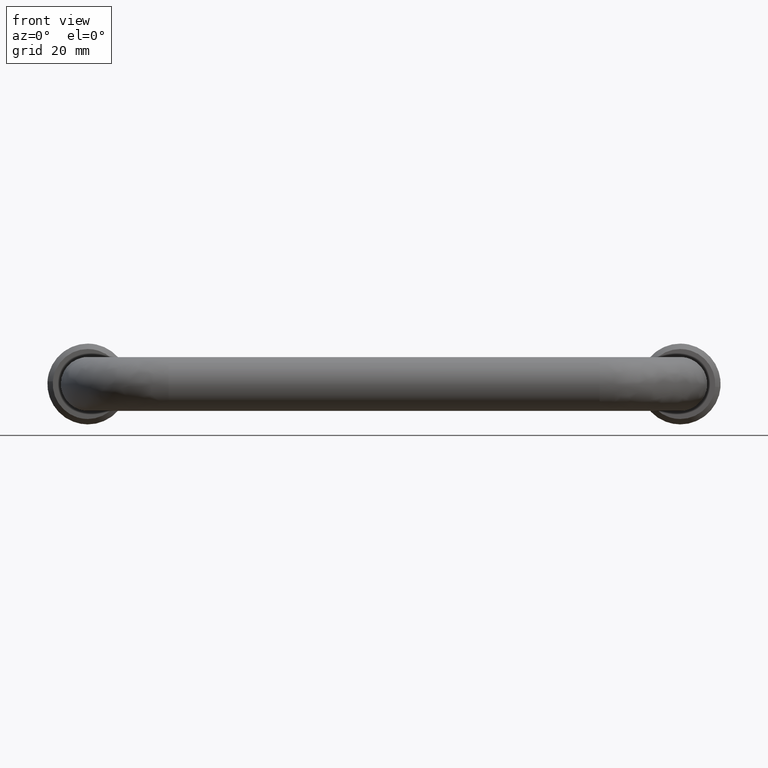
[diagram: clean part render]
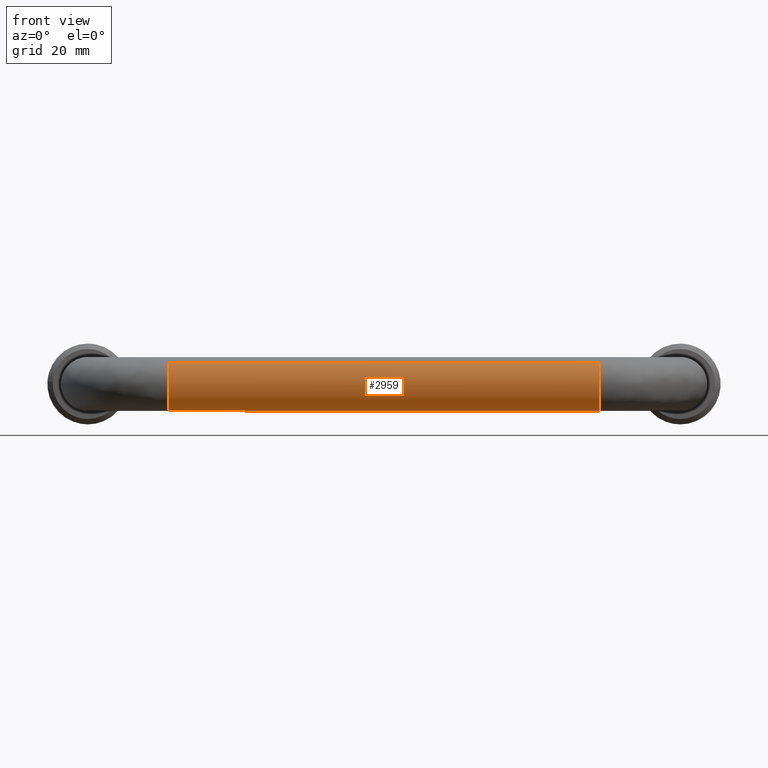
[diagram: same view with one face highlighted and labeled with its STEP entity id]
A machine part, front view. The second image highlights one B-rep face of the part: STEP entity #2959.
In plain terms, the highlighted face is a freeform B-spline surface patch.
Its self-contained STEP definition (entity closure, byte-faithful):
#2793=CARTESIAN_POINT('',(12.999999999521112,-38.040222708102142,3.969514565427370));
#2794=CARTESIAN_POINT('',(12.999999999521103,-38.389316865543059,3.702145856426702));
#2795=CARTESIAN_POINT('',(12.999999999521110,-38.686386684050618,3.377951038078300));
#2796=CARTESIAN_POINT('',(12.999999999521108,-42.064337722128919,-0.308435645972319));
#2797=CARTESIAN_POINT('',(12.999999999521110,-38.377951038078301,-3.686386684050619));
#2798=CARTESIAN_POINT('',(12.999999999521108,-34.691564354027683,-7.064337722128919));
#2799=CARTESIAN_POINT('',(12.999999999521110,-31.313613315949379,-3.377951038078300));
#2800=CARTESIAN_POINT('',(12.999999999521108,-27.935662277871085,0.308435645972319));
#2801=CARTESIAN_POINT('',(12.999999999521110,-31.622048961921699,3.686386684050619));
#2802=CARTESIAN_POINT('',(97.050000000557006,-38.040222708102128,3.969514565427370));
#2803=CARTESIAN_POINT('',(97.050000000557006,-38.389316865543044,3.702145856426702));
#2804=CARTESIAN_POINT('',(97.050000000557006,-38.686386684050603,3.377951038078300));
#2805=CARTESIAN_POINT('',(97.050000000557006,-42.064337722128904,-0.308435645972319));
#2806=CARTESIAN_POINT('',(97.050000000557006,-38.377951038078287,-3.686386684050619));
#2807=CARTESIAN_POINT('',(97.050000000557006,-34.691564354027676,-7.064337722128919));
#2808=CARTESIAN_POINT('',(97.050000000557006,-31.313613315949372,-3.377951038078300));
#2809=CARTESIAN_POINT('',(97.050000000557006,-27.935662277871071,0.308435645972319));
#2810=CARTESIAN_POINT('',(97.050000000557006,-31.622048961921688,3.686386684050619));
#2818=(BOUNDED_SURFACE()B_SPLINE_SURFACE(2,1,((#2793,#2802),(#2794,#2803),(#2795,#2804),(#2796,#2805),(#2797,#2806),(#2798,#2807),(#2799,#2808),(#2800,#2809),(#2801,#2810)),.UNSPECIFIED.,.F.,.F.,.U.)B_SPLINE_SURFACE_WITH_KNOTS((3,2,2,2,3),(2,2),(0.0,0.994112549695429,9.278383797157336,17.562655044619241,25.846926292081150),(0.0,84.050000001035897),.UNSPECIFIED.)GEOMETRIC_REPRESENTATION_ITEM()RATIONAL_B_SPLINE_SURFACE(((0.938140952186599,0.938140952186599),(0.964852813742386,0.964852813742386),(1.0,1.0),(0.707106781186548,0.707106781186548),(1.0,1.0),(0.707106781186548,0.707106781186548),(1.0,1.0),(0.707106781186548,0.707106781186548),(1.0,1.0)))REPRESENTATION_ITEM('')SURFACE());
#2819=CARTESIAN_POINT('',(95.0,-40.0,0.0));
#2820=VERTEX_POINT('',#2819);
#2821=CARTESIAN_POINT('',(95.000000000009067,-38.040222708085423,3.969514565401058));
#2822=VERTEX_POINT('',#2821);
#2823=CARTESIAN_POINT('',(95.0,-40.0,0.0));
#2824=CARTESIAN_POINT('',(95.000000000000028,-40.0,2.468535206946315));
#2825=CARTESIAN_POINT('',(95.000000000009067,-38.040222708085430,3.969514565401058));
#2833=(BOUNDED_CURVE()B_SPLINE_CURVE(2,(#2823,#2824,#2825),.UNSPECIFIED.,.F.,.U.)B_SPLINE_CURVE_WITH_KNOTS((3,3),(0.500000000000000,0.644916377218949),.UNSPECIFIED.)CURVE()GEOMETRIC_REPRESENTATION_ITEM()RATIONAL_B_SPLINE_CURVE((1.0,0.830219903270230,0.857271138876148))REPRESENTATION_ITEM(''));
#2834=EDGE_CURVE('',#2820,#2822,#2833,.T.);
#2835=ORIENTED_EDGE('',*,*,#2834,.T.);
#2836=CARTESIAN_POINT('',(15.0,-38.040222708104316,3.969514565425701));
#2837=VERTEX_POINT('',#2836);
#2838=CARTESIAN_POINT('',(15.0,-38.040222708104316,3.969514565425701));
#2839=CARTESIAN_POINT('',(95.000000000009067,-38.040222708085423,3.969514565401058));
#2840=QUASI_UNIFORM_CURVE('',1,(#2838,#2839),.UNSPECIFIED.,.F.,.U.);
#2841=EDGE_CURVE('',#2837,#2822,#2840,.T.);
#2842=ORIENTED_EDGE('',*,*,#2841,.F.);
#2843=CARTESIAN_POINT('',(15.0,-40.0,0.0));
#2844=VERTEX_POINT('',#2843);
#2845=CARTESIAN_POINT('',(15.0,-40.0,0.0));
#2846=CARTESIAN_POINT('',(14.999999999999996,-40.000000000000007,2.468535207004767));
#2847=CARTESIAN_POINT('',(14.999999999999995,-38.040222708104324,3.969514565425702));
#2855=(BOUNDED_CURVE()B_SPLINE_CURVE(2,(#2845,#2846,#2847),.UNSPECIFIED.,.F.,.U.)B_SPLINE_CURVE_WITH_KNOTS((3,3),(0.500000000000000,0.644916377221798),.UNSPECIFIED.)CURVE()GEOMETRIC_REPRESENTATION_ITEM()RATIONAL_B_SPLINE_CURVE((1.0,0.830219903266893,0.857271138877212))REPRESENTATION_ITEM(''));
#2856=EDGE_CURVE('',#2844,#2837,#2855,.T.);
#2857=ORIENTED_EDGE('',*,*,#2856,.F.);
#2858=CARTESIAN_POINT('',(14.999999999892941,-35.348666258712242,-4.987828369143790));
#2859=VERTEX_POINT('',#2858);
#2860=CARTESIAN_POINT('',(14.999999999892941,-35.348666258712257,-4.987828369143790));
#2861=CARTESIAN_POINT('',(15.000000000000002,-39.999999999999993,-4.662684234768082));
#2862=CARTESIAN_POINT('',(15.0,-40.0,0.0));
#2870=(BOUNDED_CURVE()B_SPLINE_CURVE(2,(#2860,#2861,#2862),.UNSPECIFIED.,.F.,.U.)B_SPLINE_CURVE_WITH_KNOTS((3,3),(0.262166313522450,0.500000000000000),.UNSPECIFIED.)CURVE()GEOMETRIC_REPRESENTATION_ITEM()RATIONAL_B_SPLINE_CURVE((0.972879876265270,0.721360504101284,1.0))REPRESENTATION_ITEM(''));
#2871=EDGE_CURVE('',#2859,#2844,#2870,.T.);
#2872=ORIENTED_EDGE('',*,*,#2871,.F.);
#2873=CARTESIAN_POINT('',(15.0,-30.0,0.0));
#2874=VERTEX_POINT('',#2873);
#2875=CARTESIAN_POINT('',(15.0,-30.0,0.0));
#2876=CARTESIAN_POINT('',(14.999999999999995,-30.000000000000004,-5.000000000000001));
#2877=CARTESIAN_POINT('',(15.0,-35.0,-5.0));
#2878=CARTESIAN_POINT('',(14.999999999999998,-35.174545580211650,-5.000000000000001));
#2879=CARTESIAN_POINT('',(14.999999999892944,-35.348666258712242,-4.987828369143790));
#2887=(BOUNDED_CURVE()B_SPLINE_CURVE(2,(#2875,#2876,#2877,#2878,#2879),.UNSPECIFIED.,.F.,.U.)B_SPLINE_CURVE_WITH_KNOTS((3,2,3),(0.0,0.250000000000000,0.262166313522450),.UNSPECIFIED.)CURVE()GEOMETRIC_REPRESENTATION_ITEM()RATIONAL_B_SPLINE_CURVE((1.0,0.707106781186548,1.0,0.985746277085264,0.972879876265270))REPRESENTATION_ITEM(''));
#2888=EDGE_CURVE('',#2874,#2859,#2887,.T.);
#2889=ORIENTED_EDGE('',*,*,#2888,.F.);
#2890=CARTESIAN_POINT('',(14.999999999850759,-31.622050296201198,3.686387906574944));
#2891=VERTEX_POINT('',#2890);
#2892=CARTESIAN_POINT('',(14.999999999850761,-31.622050296201198,3.686387906574944));
#2893=CARTESIAN_POINT('',(15.000000000000004,-30.000000000000007,2.200053734357496));
#2894=CARTESIAN_POINT('',(15.0,-30.0,0.0));
#2902=(BOUNDED_CURVE()B_SPLINE_CURVE(2,(#2892,#2893,#2894),.UNSPECIFIED.,.F.,.U.)B_SPLINE_CURVE_WITH_KNOTS((3,3),(0.868415154452578,1.0),.UNSPECIFIED.)CURVE()GEOMETRIC_REPRESENTATION_ITEM()RATIONAL_B_SPLINE_CURVE((0.853959787581312,0.845838764162179,1.0))REPRESENTATION_ITEM(''));
#2903=EDGE_CURVE('',#2891,#2874,#2902,.T.);
#2904=ORIENTED_EDGE('',*,*,#2903,.F.);
#2905=CARTESIAN_POINT('',(95.000000000000028,-31.622050338434860,3.686387945391597));
#2906=VERTEX_POINT('',#2905);
#2907=CARTESIAN_POINT('',(14.999999999850759,-31.622050296201198,3.686387906574944));
#2908=CARTESIAN_POINT('',(95.000000000000028,-31.622050338434860,3.686387945391597));
#2909=QUASI_UNIFORM_CURVE('',1,(#2907,#2908),.UNSPECIFIED.,.F.,.U.);
#2910=EDGE_CURVE('',#2891,#2906,#2909,.T.);
#2911=ORIENTED_EDGE('',*,*,#2910,.T.);
#2912=CARTESIAN_POINT('',(95.0,-30.0,0.0));
#2913=VERTEX_POINT('',#2912);
#2914=CARTESIAN_POINT('',(95.000000000000028,-31.622050338434853,3.686387945391597));
#2915=CARTESIAN_POINT('',(94.999999999999986,-30.000000000000004,2.200053768706383));
#2916=CARTESIAN_POINT('',(95.0,-30.0,0.0));
#2924=(BOUNDED_CURVE()B_SPLINE_CURVE(2,(#2914,#2915,#2916),.UNSPECIFIED.,.F.,.U.)B_SPLINE_CURVE_WITH_KNOTS((3,3),(0.868415152714886,1.0),.UNSPECIFIED.)CURVE()GEOMETRIC_REPRESENTATION_ITEM()RATIONAL_B_SPLINE_CURVE((0.853959787795803,0.845838762126346,1.0))REPRESENTATION_ITEM(''));
#2925=EDGE_CURVE('',#2906,#2913,#2924,.T.);
#2926=ORIENTED_EDGE('',*,*,#2925,.T.);
#2927=CARTESIAN_POINT('',(95.000000000531742,-34.937169799613507,-4.999605221006894));
#2928=VERTEX_POINT('',#2927);
#2929=CARTESIAN_POINT('',(95.0,-30.0,0.0));
#2930=CARTESIAN_POINT('',(95.000000000000028,-30.000000000000007,-4.937559647621043));
#2931=CARTESIAN_POINT('',(95.000000000531742,-34.937169799613514,-4.999605221006894));
#2939=(BOUNDED_CURVE()B_SPLINE_CURVE(2,(#2929,#2930,#2931),.UNSPECIFIED.,.F.,.U.)B_SPLINE_CURVE_WITH_KNOTS((3,3),(0.0,0.247784295853506),.UNSPECIFIED.)CURVE()GEOMETRIC_REPRESENTATION_ITEM()RATIONAL_B_SPLINE_CURVE((1.0,0.709702640064168,0.994854295486991))REPRESENTATION_ITEM(''));
#2940=EDGE_CURVE('',#2913,#2928,#2939,.T.);
#2941=ORIENTED_EDGE('',*,*,#2940,.T.);
#2942=CARTESIAN_POINT('',(95.000000000531742,-34.937169799613521,-4.999605221006894));
#2943=CARTESIAN_POINT('',(95.0,-34.968583659070717,-5.000000000000001));
#2944=CARTESIAN_POINT('',(95.0,-35.0,-5.0));
#2945=CARTESIAN_POINT('',(95.000000000000014,-39.999999999999993,-5.000000000000001));
#2946=CARTESIAN_POINT('',(95.0,-40.0,0.0));
#2954=(BOUNDED_CURVE()B_SPLINE_CURVE(2,(#2942,#2943,#2944,#2945,#2946),.UNSPECIFIED.,.F.,.U.)B_SPLINE_CURVE_WITH_KNOTS((3,2,3),(0.247784295853506,0.250000000000000,0.500000000000000),.UNSPECIFIED.)CURVE()GEOMETRIC_REPRESENTATION_ITEM()RATIONAL_B_SPLINE_CURVE((0.994854295486991,0.997404141122380,1.0,0.707106781186548,1.0))REPRESENTATION_ITEM(''));
#2955=EDGE_CURVE('',#2928,#2820,#2954,.T.);
#2956=ORIENTED_EDGE('',*,*,#2955,.T.);
#2957=EDGE_LOOP('',(#2835,#2842,#2857,#2872,#2889,#2904,#2911,#2926,#2941,#2956));
#2958=FACE_OUTER_BOUND('',#2957,.T.);
#2959=ADVANCED_FACE('',(#2958),#2818,.T.);